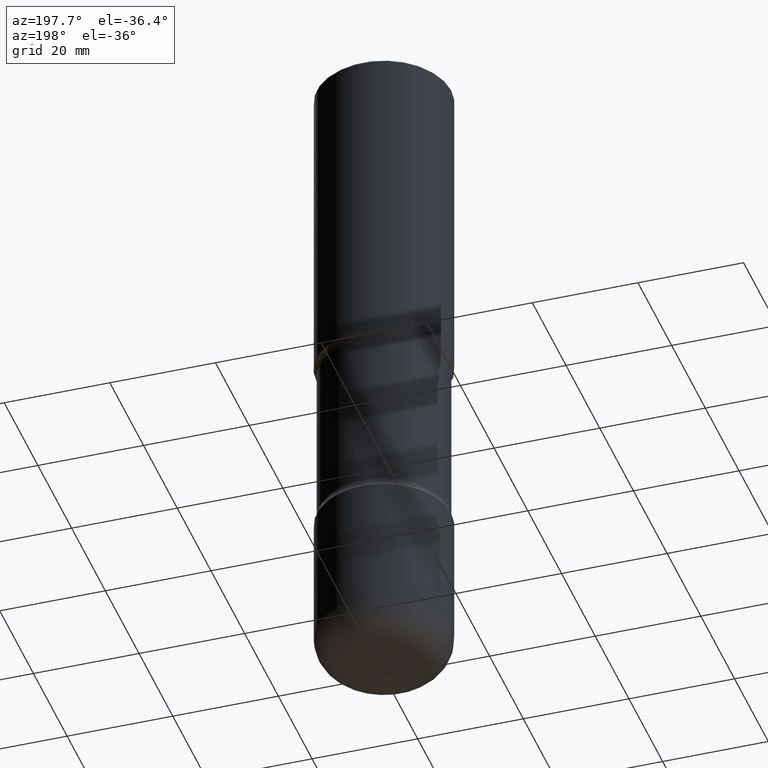
[diagram: clean part render]
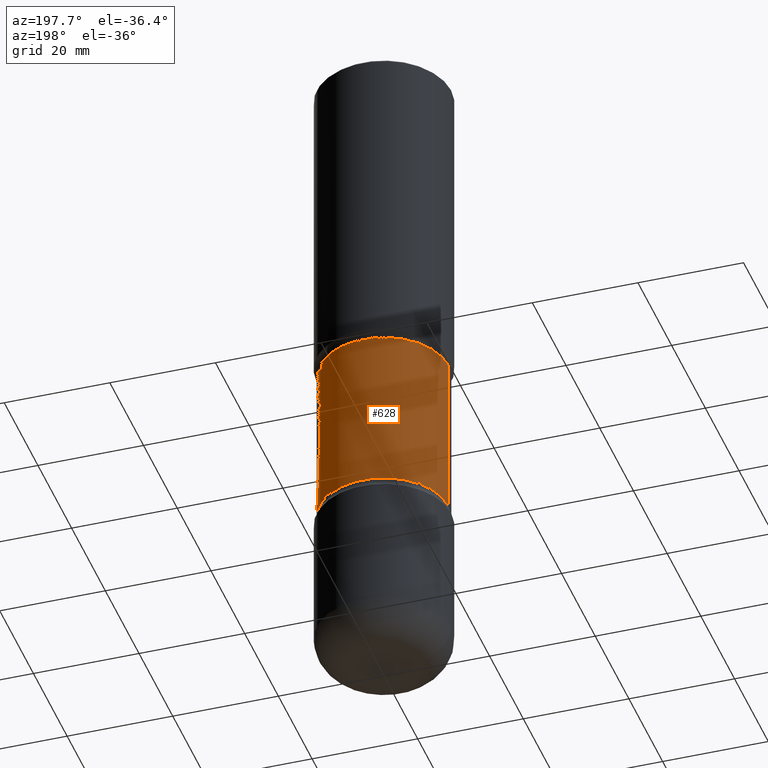
[diagram: same view with one face highlighted and labeled with its STEP entity id]
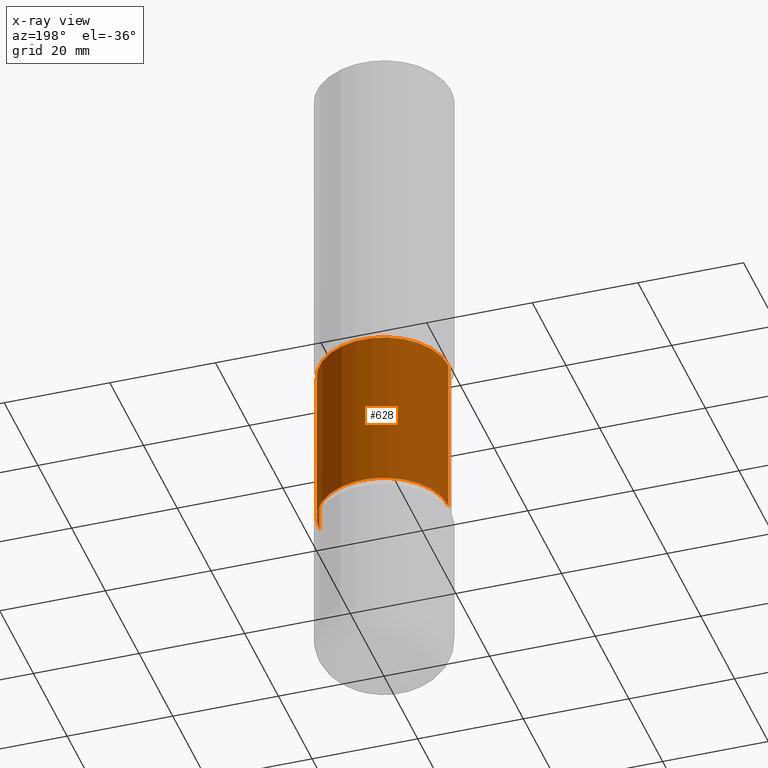
[diagram: x-ray of the same camera — body ghosted, the highlighted face saturated]
A machine part, auxiliary view. The second image highlights one B-rep face of the part: STEP entity #628.
The next image is the same camera in x-ray: the body ghosted, the highlighted face saturated — about 0% of this face is hidden behind the body in this view.
In plain terms, the highlighted cylindrical surface (partial cylindrical patch) has radius 12.192 mm, axis along (-0, 0, 1).
Its self-contained STEP definition (entity closure, byte-faithful):
#10 = ORIENTED_EDGE ( 'NONE', *, *, #249, .F. ) ;
#66 = LINE ( 'NONE', #336, #437 ) ;
#78 = CYLINDRICAL_SURFACE ( 'NONE', #656, 0.4800000000000000933 ) ;
#85 = FACE_OUTER_BOUND ( 'NONE', #215, .T. ) ;
#96 = VERTEX_POINT ( 'NONE', #621 ) ;
#196 = DIRECTION ( 'NONE',  ( 1.000000000000000000, -6.982962677686268288E-15, 0.000000000000000000 ) ) ;
#206 = EDGE_CURVE ( 'NONE', #96, #501, #66, .T. ) ;
#215 = EDGE_LOOP ( 'NONE', ( #542, #391, #10, #345 ) ) ;
#225 = DIRECTION ( 'NONE',  ( -2.445468806185136597E-29, 3.491481338843145583E-15, 1.000000000000000000 ) ) ;
#237 = CARTESIAN_POINT ( 'NONE',  ( 9.004648259124392254E-29, -1.285625123496221394E-14, -3.682176700168747541 ) ) ;
#249 = EDGE_CURVE ( 'NONE', #501, #650, #520, .T. ) ;
#289 = CARTESIAN_POINT ( 'NONE',  ( 5.807988414689700538E-29, -8.292268179752471696E-15, -2.375000000000000000 ) ) ;
#301 = AXIS2_PLACEMENT_3D ( 'NONE', #237, #225, #670 ) ;
#307 = CARTESIAN_POINT ( 'NONE',  ( 0.4800000000000000933, -1.188089405074146193E-14, -2.442823299831252903 ) ) ;
#316 = EDGE_CURVE ( 'NONE', #96, #649, #322, .T. ) ;
#322 = CIRCLE ( 'NONE', #301, 0.4800000000000001488 ) ;
#336 = CARTESIAN_POINT ( 'NONE',  ( 0.4800000000000000933, -1.164409026504188161E-14, -2.375000000000000000 ) ) ;
#345 = ORIENTED_EDGE ( 'NONE', *, *, #206, .F. ) ;
#346 = DIRECTION ( 'NONE',  ( 1.000000000000000000, -6.982962677686264344E-15, 0.000000000000000000 ) ) ;
#391 = ORIENTED_EDGE ( 'NONE', *, *, #441, .T. ) ;
#430 = CARTESIAN_POINT ( 'NONE',  ( -0.4800000000000000933, -4.881663048103990141E-15, -2.375000000000000000 ) ) ;
#437 = VECTOR ( 'NONE', #644, 39.37007874015748143 ) ;
#441 = EDGE_CURVE ( 'NONE', #649, #650, #722, .T. ) ;
#460 = DIRECTION ( 'NONE',  ( -2.445468806185136597E-29, 3.491481338843145583E-15, 1.000000000000000000 ) ) ;
#501 = VERTEX_POINT ( 'NONE', #307 ) ;
#517 = CARTESIAN_POINT ( 'NONE',  ( -0.4800000000000002043, -9.492993722587514039E-15, -3.682176700168747541 ) ) ;
#520 = CIRCLE ( 'NONE', #665, 0.4800000000000000933 ) ;
#521 = VECTOR ( 'NONE', #788, 39.37007874015748143 ) ;
#542 = ORIENTED_EDGE ( 'NONE', *, *, #316, .T. ) ;
#621 = CARTESIAN_POINT ( 'NONE',  ( 0.4800000000000001488, -1.620807332025162227E-14, -3.682176700168747541 ) ) ;
#624 = DIRECTION ( 'NONE',  ( -2.445468806185136597E-29, 3.491481338843145583E-15, 1.000000000000000000 ) ) ;
#628 = ADVANCED_FACE ( 'NONE', ( #85 ), #78, .T. ) ;
#644 = DIRECTION ( 'NONE',  ( -2.445468806185136877E-29, 3.491481338843145188E-15, 1.000000000000000000 ) ) ;
#649 = VERTEX_POINT ( 'NONE', #517 ) ;
#650 = VERTEX_POINT ( 'NONE', #691 ) ;
#656 = AXIS2_PLACEMENT_3D ( 'NONE', #289, #624, #196 ) ;
#665 = AXIS2_PLACEMENT_3D ( 'NONE', #755, #460, #346 ) ;
#670 = DIRECTION ( 'NONE',  ( 1.000000000000000000, -6.982962677686265922E-15, 0.000000000000000000 ) ) ;
#691 = CARTESIAN_POINT ( 'NONE',  ( -0.4800000000000001488, -4.929010667377771008E-15, -2.442823299831252903 ) ) ;
#722 = LINE ( 'NONE', #430, #521 ) ;
#755 = CARTESIAN_POINT ( 'NONE',  ( 5.973848178759569401E-29, -8.529071965452053594E-15, -2.442823299831252903 ) ) ;
#788 = DIRECTION ( 'NONE',  ( -2.445468806185136877E-29, 3.491481338843145188E-15, 1.000000000000000000 ) ) ;